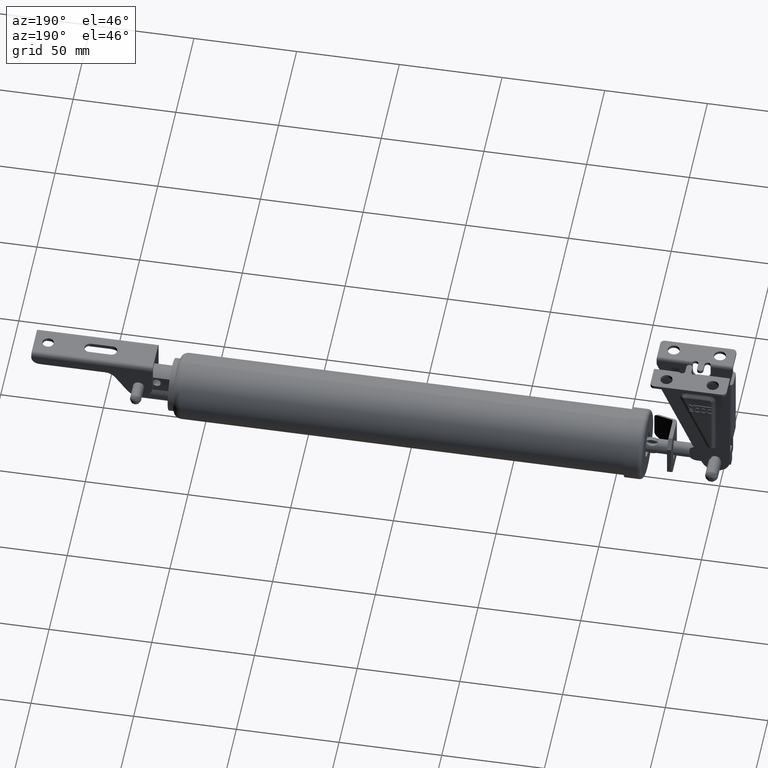
[diagram: clean part render]
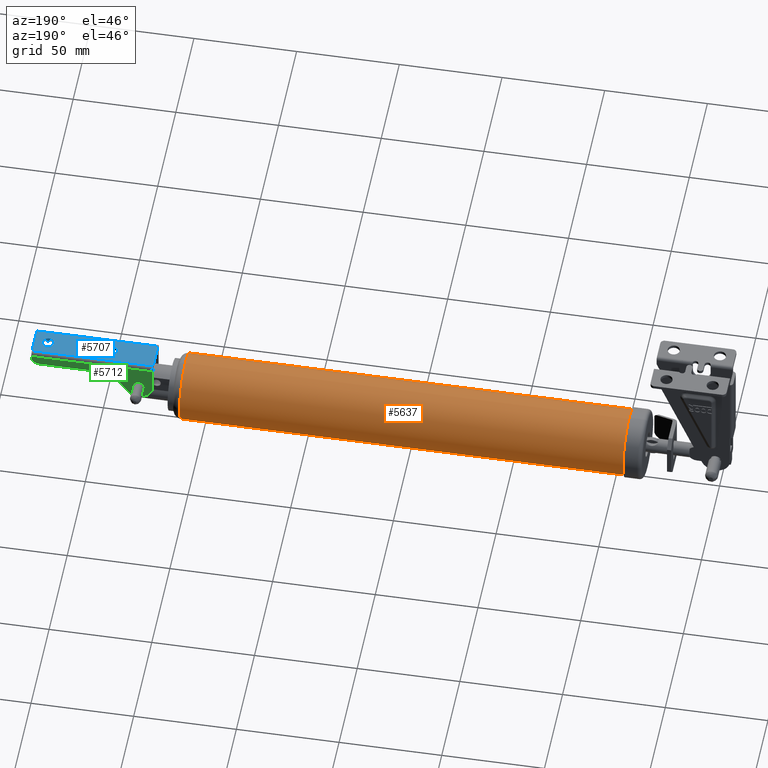
[diagram: same view with three faces highlighted in distinct colors, each labeled with its STEP entity id]
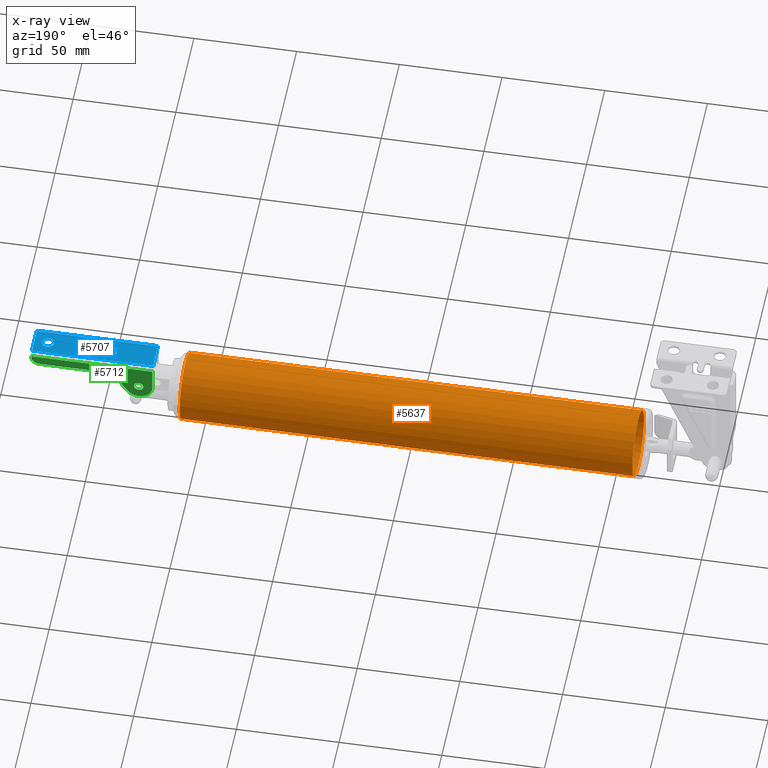
[diagram: x-ray of the same camera — body ghosted, the three highlighted faces saturated]
A machine part, auxiliary view with three faces highlighted in distinct colors.
The next image is the same camera in x-ray (body ghosted, the three faces saturated) — at least one of them is partly hidden behind the body in this view.
Their STEP definitions:

[orange] entity #5637 — the highlighted cylindrical surface (bore or boss wall) has radius 16 mm, axis along (-1, 0, 0).
#1427=FACE_BOUND('',#1875,.T.);
#1516=FACE_OUTER_BOUND('',#1874,.T.);
#1874=EDGE_LOOP('',(#3903));
#1875=EDGE_LOOP('',(#3904));
#2304=CIRCLE('',#6007,16.);
#2306=CIRCLE('',#6010,16.);
#2527=VERTEX_POINT('',#8230);
#2529=VERTEX_POINT('',#8235);
#3073=EDGE_CURVE('',#2527,#2527,#2304,.T.);
#3075=EDGE_CURVE('',#2529,#2529,#2306,.T.);
#3903=ORIENTED_EDGE('',*,*,#3073,.T.);
#3904=ORIENTED_EDGE('',*,*,#3075,.T.);
#5532=CYLINDRICAL_SURFACE('',#6009,16.);
#5637=ADVANCED_FACE('',(#1516,#1427),#5532,.T.);
#6007=AXIS2_PLACEMENT_3D('',#8231,#6602,#6603);
#6009=AXIS2_PLACEMENT_3D('',#8234,#6606,#6607);
#6010=AXIS2_PLACEMENT_3D('',#8236,#6608,#6609);
#6602=DIRECTION('center_axis',(-3.75785659351172E-15,-1.,-6.59303459725205E-14));
#6603=DIRECTION('ref_axis',(-6.93889390390725E-16,-6.59303459725205E-14,
1.));
#6606=DIRECTION('center_axis',(0.,-1.,0.));
#6607=DIRECTION('ref_axis',(-4.36681965071425E-15,0.,-1.));
#6608=DIRECTION('center_axis',(1.8610995229314E-43,1.,-1.11022302462516E-15));
#6609=DIRECTION('ref_axis',(-1.,-3.58445680004802E-58,-1.67632942359465E-28));
#8230=CARTESIAN_POINT('',(0.,110.070941588625,16.));
#8231=CARTESIAN_POINT('Origin',(1.11022302462516E-14,110.070941588626,-3.94949584426453E-15));
#8234=CARTESIAN_POINT('Origin',(3.25573293391863E-15,-132.570533152129,
-8.88178419700125E-15));
#8235=CARTESIAN_POINT('',(7.11654124667108E-14,-110.403126357515,16.));
#8236=CARTESIAN_POINT('Origin',(-2.22044604925031E-15,-110.403126357515,
-5.04239890617271E-27));

[blue] entity #5707 — the highlighted planar face has unit normal (-0, -0, 1).
#259=LINE('',#8604,#738);
#264=LINE('',#8618,#743);
#268=LINE('',#8643,#747);
#269=LINE('',#8646,#748);
#270=LINE('',#8648,#749);
#271=LINE('',#8649,#750);
#738=VECTOR('',#6898,10.5);
#743=VECTOR('',#6911,10.5);
#747=VECTOR('',#6939,59.);
#748=VECTOR('',#6942,13.3);
#749=VECTOR('',#6943,59.);
#750=VECTOR('',#6944,13.3);
#1271=PLANE('',#6146);
#1456=FACE_BOUND('',#1974,.T.);
#1457=FACE_BOUND('',#1975,.T.);
#1586=FACE_OUTER_BOUND('',#1973,.T.);
#1973=EDGE_LOOP('',(#4153,#4154,#4155,#4156));
#1974=EDGE_LOOP('',(#4157));
#1975=EDGE_LOOP('',(#4158,#4159,#4160,#4161));
#2349=CIRCLE('',#6127,2.75);
#2351=CIRCLE('',#6131,2.75);
#2353=CIRCLE('',#6135,2.75);
#2610=VERTEX_POINT('',#8597);
#2612=VERTEX_POINT('',#8602);
#2613=VERTEX_POINT('',#8603);
#2616=VERTEX_POINT('',#8611);
#2618=VERTEX_POINT('',#8617);
#2624=VERTEX_POINT('',#8636);
#2627=VERTEX_POINT('',#8641);
#2628=VERTEX_POINT('',#8645);
#2629=VERTEX_POINT('',#8647);
#3186=EDGE_CURVE('',#2610,#2610,#2349,.T.);
#3188=EDGE_CURVE('',#2612,#2613,#259,.T.);
#3192=EDGE_CURVE('',#2613,#2616,#2351,.T.);
#3195=EDGE_CURVE('',#2616,#2618,#264,.T.);
#3198=EDGE_CURVE('',#2618,#2612,#2353,.T.);
#3207=EDGE_CURVE('',#2627,#2624,#268,.T.);
#3208=EDGE_CURVE('',#2627,#2628,#269,.T.);
#3209=EDGE_CURVE('',#2628,#2629,#270,.T.);
#3210=EDGE_CURVE('',#2629,#2624,#271,.T.);
#4153=ORIENTED_EDGE('',*,*,#3207,.F.);
#4154=ORIENTED_EDGE('',*,*,#3208,.T.);
#4155=ORIENTED_EDGE('',*,*,#3209,.T.);
#4156=ORIENTED_EDGE('',*,*,#3210,.T.);
#4157=ORIENTED_EDGE('',*,*,#3186,.T.);
#4158=ORIENTED_EDGE('',*,*,#3195,.T.);
#4159=ORIENTED_EDGE('',*,*,#3198,.T.);
#4160=ORIENTED_EDGE('',*,*,#3188,.T.);
#4161=ORIENTED_EDGE('',*,*,#3192,.T.);
#5707=ADVANCED_FACE('',(#1586,#1456,#1457),#1271,.T.);
#6127=AXIS2_PLACEMENT_3D('',#8598,#6892,#6893);
#6131=AXIS2_PLACEMENT_3D('',#8612,#6904,#6905);
#6135=AXIS2_PLACEMENT_3D('',#8623,#6916,#6917);
#6146=AXIS2_PLACEMENT_3D('',#8644,#6940,#6941);
#6892=DIRECTION('center_axis',(0.,0.,-1.));
#6893=DIRECTION('ref_axis',(1.,0.,0.));
#6898=DIRECTION('',(3.17206578464331E-16,1.,0.));
#6904=DIRECTION('center_axis',(0.,0.,-1.));
#6905=DIRECTION('ref_axis',(1.,0.,0.));
#6911=DIRECTION('',(0.,-1.,0.));
#6916=DIRECTION('center_axis',(0.,0.,-1.));
#6917=DIRECTION('ref_axis',(-1.,0.,0.));
#6939=DIRECTION('',(0.,1.,0.));
#6940=DIRECTION('center_axis',(0.,0.,1.));
#6941=DIRECTION('ref_axis',(-1.,0.,0.));
#6942=DIRECTION('',(1.,0.,0.));
#6943=DIRECTION('',(0.,1.,0.));
#6944=DIRECTION('',(-1.,0.,0.));
#8597=CARTESIAN_POINT('',(-2.75,176.9,17.9403703492039));
#8598=CARTESIAN_POINT('Origin',(0.,176.9,17.9403703492039));
#8602=CARTESIAN_POINT('',(-2.75,145.95,17.9403703492039));
#8603=CARTESIAN_POINT('',(-2.75,156.45,17.9403703492039));
#8604=CARTESIAN_POINT('',(-2.74999999999999,173.035,17.9403703492039));
#8611=CARTESIAN_POINT('',(2.75,156.45,17.9403703492039));
#8612=CARTESIAN_POINT('Origin',(0.,156.45,17.9403703492039));
#8617=CARTESIAN_POINT('',(2.75,145.95,17.9403703492039));
#8618=CARTESIAN_POINT('',(2.75,167.785,17.9403703492039));
#8623=CARTESIAN_POINT('Origin',(0.,145.95,17.9403703492039));
#8636=CARTESIAN_POINT('',(-6.65,183.6,17.9403703492039));
#8641=CARTESIAN_POINT('',(-6.65,124.6,17.9403703492039));
#8643=CARTESIAN_POINT('',(-6.65,124.6,17.9403703492039));
#8644=CARTESIAN_POINT('Origin',(-8.1,189.62,17.9403703492039));
#8645=CARTESIAN_POINT('',(6.65,124.6,17.9403703492039));
#8646=CARTESIAN_POINT('',(-6.65,124.6,17.9403703492039));
#8647=CARTESIAN_POINT('',(6.65,183.6,17.9403703492039));
#8648=CARTESIAN_POINT('',(6.65,124.6,17.9403703492039));
#8649=CARTESIAN_POINT('',(6.65,183.6,17.9403703492039));

[green] entity #5712 — the highlighted planar face has unit normal (-0, 1, 0).
#267=LINE('',#8640,#746);
#272=LINE('',#8652,#751);
#285=LINE('',#8692,#764);
#286=LINE('',#8694,#765);
#287=LINE('',#8698,#766);
#746=VECTOR('',#6936,59.);
#751=VECTOR('',#6947,11.3);
#764=VECTOR('',#6982,0.5);
#765=VECTOR('',#6983,31.960675122625);
#766=VECTOR('',#6986,10.3113305372482);
#1274=PLANE('',#6158);
#1459=FACE_BOUND('',#1982,.T.);
#1591=FACE_OUTER_BOUND('',#1981,.T.);
#1981=EDGE_LOOP('',(#4189,#4190,#4191,#4192,#4193,#4194,#4195,#4196));
#1982=EDGE_LOOP('',(#4197));
#2356=CIRCLE('',#6139,2.25000000000001);
#2366=CIRCLE('',#6156,3.99999999999999);
#2368=CIRCLE('',#6159,6.00000000000004);
#2369=CIRCLE('',#6160,6.69999999999999);
#2621=VERTEX_POINT('',#8628);
#2625=VERTEX_POINT('',#8637);
#2626=VERTEX_POINT('',#8639);
#2630=VERTEX_POINT('',#8651);
#2643=VERTEX_POINT('',#8683);
#2644=VERTEX_POINT('',#8684);
#2647=VERTEX_POINT('',#8693);
#2648=VERTEX_POINT('',#8695);
#2649=VERTEX_POINT('',#8697);
#3201=EDGE_CURVE('',#2621,#2621,#2356,.T.);
#3205=EDGE_CURVE('',#2625,#2626,#267,.T.);
#3211=EDGE_CURVE('',#2626,#2630,#272,.T.);
#3227=EDGE_CURVE('',#2643,#2644,#2366,.T.);
#3231=EDGE_CURVE('',#2644,#2625,#285,.T.);
#3232=EDGE_CURVE('',#2647,#2643,#286,.T.);
#3233=EDGE_CURVE('',#2648,#2647,#2368,.T.);
#3234=EDGE_CURVE('',#2649,#2648,#287,.T.);
#3235=EDGE_CURVE('',#2630,#2649,#2369,.T.);
#4189=ORIENTED_EDGE('',*,*,#3231,.F.);
#4190=ORIENTED_EDGE('',*,*,#3227,.F.);
#4191=ORIENTED_EDGE('',*,*,#3232,.F.);
#4192=ORIENTED_EDGE('',*,*,#3233,.F.);
#4193=ORIENTED_EDGE('',*,*,#3234,.F.);
#4194=ORIENTED_EDGE('',*,*,#3235,.F.);
#4195=ORIENTED_EDGE('',*,*,#3211,.F.);
#4196=ORIENTED_EDGE('',*,*,#3205,.F.);
#4197=ORIENTED_EDGE('',*,*,#3201,.T.);
#5712=ADVANCED_FACE('',(#1591,#1459),#1274,.T.);
#6139=AXIS2_PLACEMENT_3D('',#8629,#6924,#6925);
#6156=AXIS2_PLACEMENT_3D('',#8685,#6974,#6975);
#6158=AXIS2_PLACEMENT_3D('',#8691,#6980,#6981);
#6159=AXIS2_PLACEMENT_3D('',#8696,#6984,#6985);
#6160=AXIS2_PLACEMENT_3D('',#8699,#6987,#6988);
#6924=DIRECTION('center_axis',(1.,0.,4.93432455388958E-16));
#6925=DIRECTION('ref_axis',(-1.09564014614029E-30,-1.,2.2204460492503E-15));
#6936=DIRECTION('',(0.,-1.,0.));
#6947=DIRECTION('',(0.,0.,-1.));
#6974=DIRECTION('center_axis',(1.,0.,0.));
#6975=DIRECTION('ref_axis',(0.,1.,3.33066907387548E-15));
#6980=DIRECTION('center_axis',(-1.,0.,0.));
#6981=DIRECTION('ref_axis',(0.,1.,0.));
#6982=DIRECTION('',(0.,0.,1.));
#6983=DIRECTION('',(0.,1.,0.));
#6984=DIRECTION('center_axis',(-1.,7.74764594197906E-16,-1.52948031314196E-15));
#6985=DIRECTION('ref_axis',(-1.52948031314196E-15,-2.96059473233373E-15,
1.));
#6986=DIRECTION('',(0.,0.591600040400117,0.806231599603104));
#6987=DIRECTION('center_axis',(1.,2.70070653377252E-16,5.44464498327341E-16));
#6988=DIRECTION('ref_axis',(1.04365724328721E-16,0.80623159960307,-0.591600040400163));
#8628=CARTESIAN_POINT('',(-8.65,133.55,4.64037034920393));
#8629=CARTESIAN_POINT('Origin',(-8.65,131.3,4.64037034920393));
#8637=CARTESIAN_POINT('',(-8.65,183.6,15.9403703492039));
#8639=CARTESIAN_POINT('',(-8.65,124.6,15.9403703492039));
#8640=CARTESIAN_POINT('',(-8.65,183.6,15.9403703492039));
#8651=CARTESIAN_POINT('',(-8.65,124.6,4.64037034920393));
#8652=CARTESIAN_POINT('',(-8.65,124.6,15.9403703492039));
#8683=CARTESIAN_POINT('',(-8.65,179.6,11.4403703492039));
#8684=CARTESIAN_POINT('',(-8.65,183.6,15.4403703492039));
#8685=CARTESIAN_POINT('Origin',(-8.65,179.6,15.4403703492039));
#8691=CARTESIAN_POINT('Origin',(-8.65,118.58,-5.27607328513086));
#8692=CARTESIAN_POINT('',(-8.65,183.6,15.4403703492039));
#8693=CARTESIAN_POINT('',(-8.65,147.639324877375,11.4403703492039));
#8694=CARTESIAN_POINT('',(-8.65,147.639324877375,11.4403703492039));
#8695=CARTESIAN_POINT('',(-8.65,142.801935279756,8.98997059160451));
#8696=CARTESIAN_POINT('Origin',(-8.64999999999999,147.639324877375,5.44037034920386));
#8697=CARTESIAN_POINT('',(-8.65,136.701751717341,0.676650078522546));
#8698=CARTESIAN_POINT('',(-8.65,136.701751717341,0.676650078522546));
#8699=CARTESIAN_POINT('Origin',(-8.65,131.3,4.64037034920393));